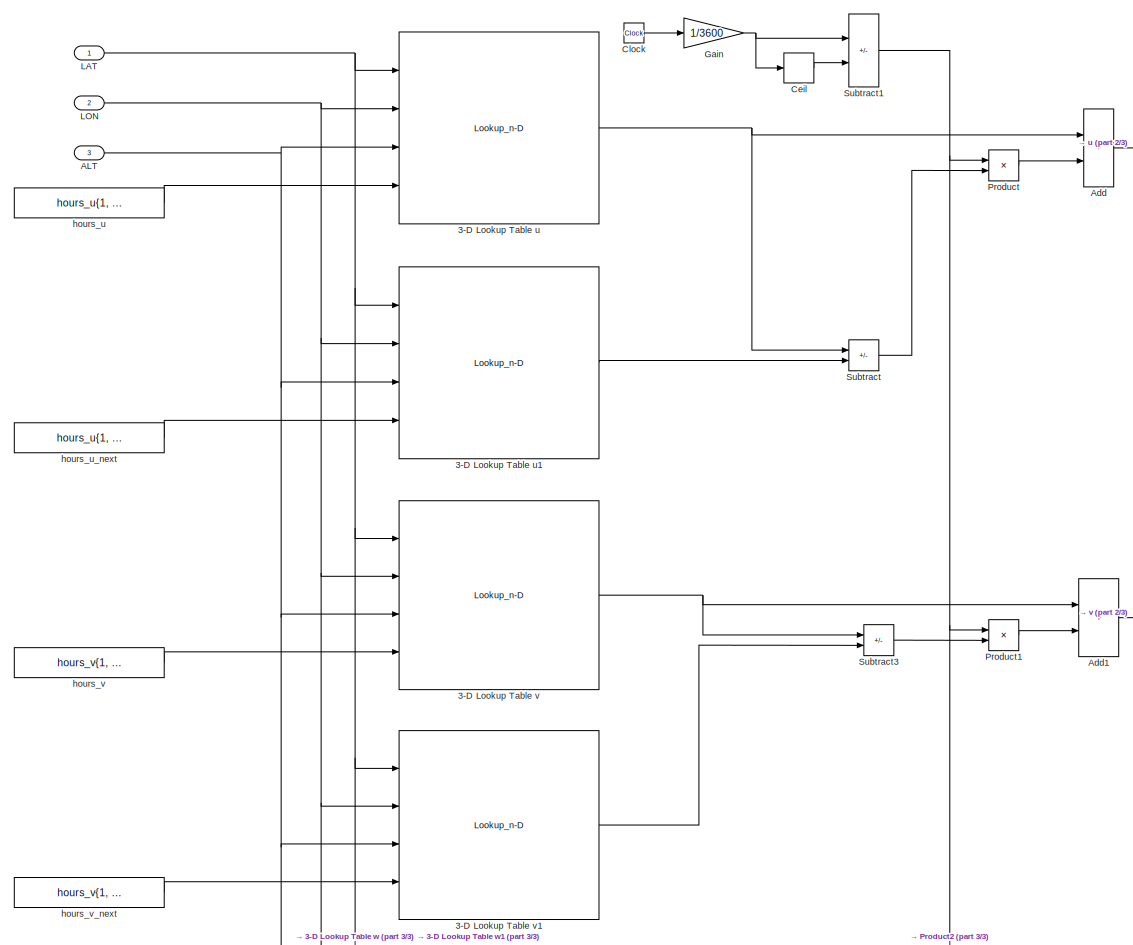
[diagram: root canvas - part 1/3, full width, middle band]
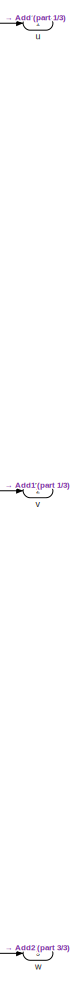
[diagram: root canvas - part 2/3, middle right region]
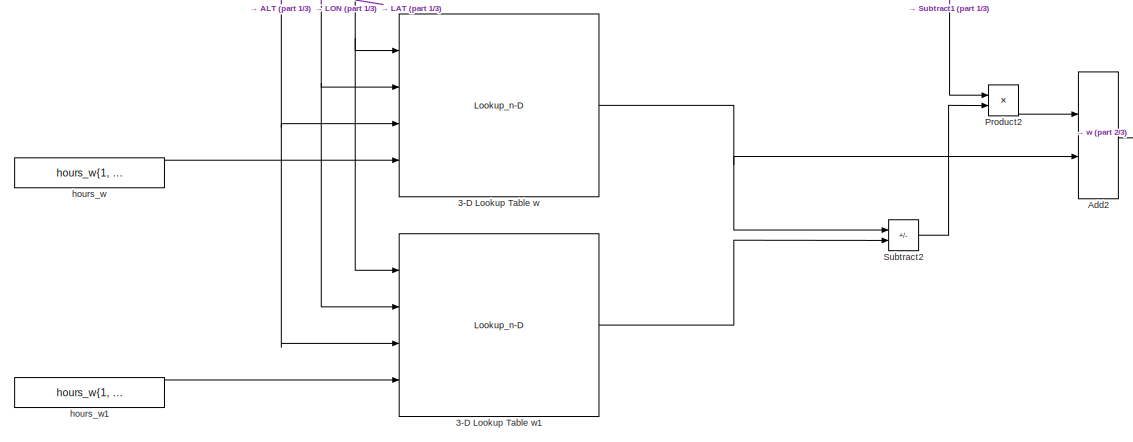
[diagram: root canvas - part 3/3, full width, bottom band]
MODEL slx_f339bd89ac73
KIND model
BLOCK [Lookup_n-D] 3-D Lookup Table u
  BreakpointsForDimension1 = lat_breakpoints
  BreakpointsForDimension2 = lon_breakpoints
  BreakpointsForDimension3 = flip(HEIGHT_BREAKPOINTS)
  ExtrapMethod = Clip
  InputPortMap = u0,u1,u2,p221
  InternalRulePriority = Speed
  NumberOfTableDimensions = 3
  Ports = [4, 1]
  RndMeth = Simplest
  Table = hours_u{1, 1}
  TableSource = Input port
BLOCK [Lookup_n-D] 3-D Lookup Table u1
  BreakpointsForDimension1 = lat_breakpoints
  BreakpointsForDimension2 = lon_breakpoints
  BreakpointsForDimension3 = flip(HEIGHT_BREAKPOINTS)
  ExtrapMethod = Clip
  InputPortMap = u0,u1,u2,p221
  InternalRulePriority = Speed
  NumberOfTableDimensions = 3
  Ports = [4, 1]
  RndMeth = Simplest
  Table = hours_u{1, 1}
  TableSource = Input port
BLOCK [Lookup_n-D] 3-D Lookup Table v
  BreakpointsForDimension1 = lat_breakpoints
  BreakpointsForDimension2 = lon_breakpoints
  BreakpointsForDimension3 = flip(HEIGHT_BREAKPOINTS)
  ExtrapMethod = Clip
  InputPortMap = u0,u1,u2,p221
  InternalRulePriority = Speed
  NumberOfTableDimensions = 3
  Ports = [4, 1]
  RndMeth = Simplest
  Table = reshape(repmat([4 5 6;16 19 20;10 18 23],1,2),[3,3,2])
  TableSource = Input port
BLOCK [Lookup_n-D] 3-D Lookup Table v1
  BreakpointsForDimension1 = lat_breakpoints
  BreakpointsForDimension2 = lon_breakpoints
  BreakpointsForDimension3 = flip(HEIGHT_BREAKPOINTS)
  ExtrapMethod = Clip
  InputPortMap = u0,u1,u2,p221
  InternalRulePriority = Speed
  NumberOfTableDimensions = 3
  Ports = [4, 1]
  RndMeth = Simplest
  Table = reshape(repmat([4 5 6;16 19 20;10 18 23],1,2),[3,3,2])
  TableSource = Input port
BLOCK [Lookup_n-D] 3-D Lookup Table w
  BreakpointsForDimension1 = lat_breakpoints
  BreakpointsForDimension2 = lon_breakpoints
  BreakpointsForDimension3 = flip(HEIGHT_BREAKPOINTS)
  ExtrapMethod = Clip
  InputPortMap = u0,u1,u2,p221
  InternalRulePriority = Speed
  NumberOfTableDimensions = 3
  Ports = [4, 1]
  RndMeth = Simplest
  Table = reshape(repmat([4 5 6;16 19 20;10 18 23],1,2),[3,3,2])
  TableSource = Input port
BLOCK [Lookup_n-D] 3-D Lookup Table w1
  BreakpointsForDimension1 = lat_breakpoints
  BreakpointsForDimension2 = lon_breakpoints
  BreakpointsForDimension3 = flip(HEIGHT_BREAKPOINTS)
  ExtrapMethod = Clip
  InputPortMap = u0,u1,u2,p221
  InternalRulePriority = Speed
  NumberOfTableDimensions = 3
  Ports = [4, 1]
  RndMeth = Simplest
  Table = reshape(repmat([4 5 6;16 19 20;10 18 23],1,2),[3,3,2])
  TableSource = Input port
BLOCK [Inport] ALT
  Port = 3
BLOCK [Sum] Add
  IconShape = rectangular
  Ports = [2, 1]
BLOCK [Sum] Add1
  IconShape = rectangular
  Ports = [2, 1]
BLOCK [Sum] Add2
  IconShape = rectangular
  Ports = [2, 1]
BLOCK [Rounding] Ceil
BLOCK [Clock] Clock
BLOCK [Gain] Gain
  Gain = 1/3600
BLOCK [Inport] LAT
BLOCK [Inport] LON
  Port = 2
BLOCK [Product] Product
  Ports = [2, 1]
BLOCK [Product] Product1
  Ports = [2, 1]
BLOCK [Product] Product2
  Ports = [2, 1]
BLOCK [Sum] Subtract
  IconShape = rectangular
  Inputs = -+
  Ports = [2, 1]
BLOCK [Sum] Subtract1
  IconShape = rectangular
  Inputs = +-
  Ports = [2, 1]
BLOCK [Sum] Subtract2
  IconShape = rectangular
  Inputs = -+
  Ports = [2, 1]
BLOCK [Sum] Subtract3
  IconShape = rectangular
  Inputs = -+
  Ports = [2, 1]
BLOCK [Constant] hours_u
  OutDataTypeStr = single
  Value = hours_u{1, matrix_idx}
BLOCK [Constant] hours_u_next
  OutDataTypeStr = single
  Value = hours_u{1, matrix_idx+1}
BLOCK [Constant] hours_v
  Value = hours_v{1, matrix_idx}
BLOCK [Constant] hours_v_next
  Value = hours_v{1, matrix_idx+1}
BLOCK [Constant] hours_w
  Value = hours_w{1, matrix_idx}
BLOCK [Constant] hours_w1
  Value = hours_w{1, matrix_idx+1}
BLOCK [Outport] u
  SignalName = u
BLOCK [Outport] v
  Port = 2
  SignalName = v
BLOCK [Outport] w
  Port = 3
  SignalName = w
LINE 3-D Lookup Table u1:1 -> Subtract:2
NET 3-D Lookup Table u:1 -> Add:1, Subtract:1
LINE 3-D Lookup Table v1:1 -> Subtract3:2
NET 3-D Lookup Table v:1 -> Add1:1, Subtract3:1
LINE 3-D Lookup Table w1:1 -> Subtract2:2
NET 3-D Lookup Table w:1 -> Add2:2, Subtract2:1
NET ALT:1 -> 3-D Lookup Table u1:3, 3-D Lookup Table u:3, 3-D Lookup Table v1:3, 3-D Lookup Table v:3, 3-D Lookup Table w1:3, 3-D Lookup Table w:3
LINE Add1:1 -> v:1
LINE Add2:1 -> w:1
LINE Add:1 -> u:1
LINE Ceil:1 -> Subtract1:2
LINE Clock:1 -> Gain:1
NET Gain:1 -> Ceil:1, Subtract1:1
NET LAT:1 -> 3-D Lookup Table u1:1, 3-D Lookup Table u:1, 3-D Lookup Table v1:1, 3-D Lookup Table v:1, 3-D Lookup Table w1:1, 3-D Lookup Table w:1
NET LON:1 -> 3-D Lookup Table u1:2, 3-D Lookup Table u:2, 3-D Lookup Table v1:2, 3-D Lookup Table v:2, 3-D Lookup Table w1:2, 3-D Lookup Table w:2
LINE Product1:1 -> Add1:2
LINE Product2:1 -> Add2:1
LINE Product:1 -> Add:2
NET Subtract1:1 -> Product1:1, Product2:1, Product:1
LINE Subtract2:1 -> Product2:2
LINE Subtract3:1 -> Product1:2
LINE Subtract:1 -> Product:2
LINE hours_u:1 -> 3-D Lookup Table u:4
LINE hours_u_next:1 -> 3-D Lookup Table u1:4
LINE hours_v:1 -> 3-D Lookup Table v:4
LINE hours_v_next:1 -> 3-D Lookup Table v1:4
LINE hours_w1:1 -> 3-D Lookup Table w1:4
LINE hours_w:1 -> 3-D Lookup Table w:4
note: NET lines group one-source signal fan-out (src -> all destinations, sorted); 1:1 wires keep LINE
